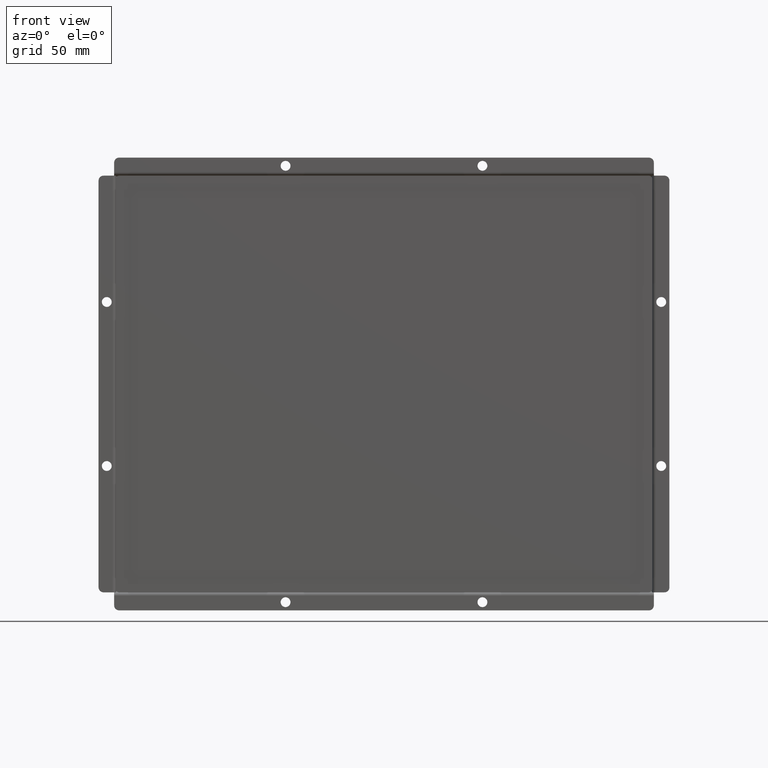
[diagram: clean part render]
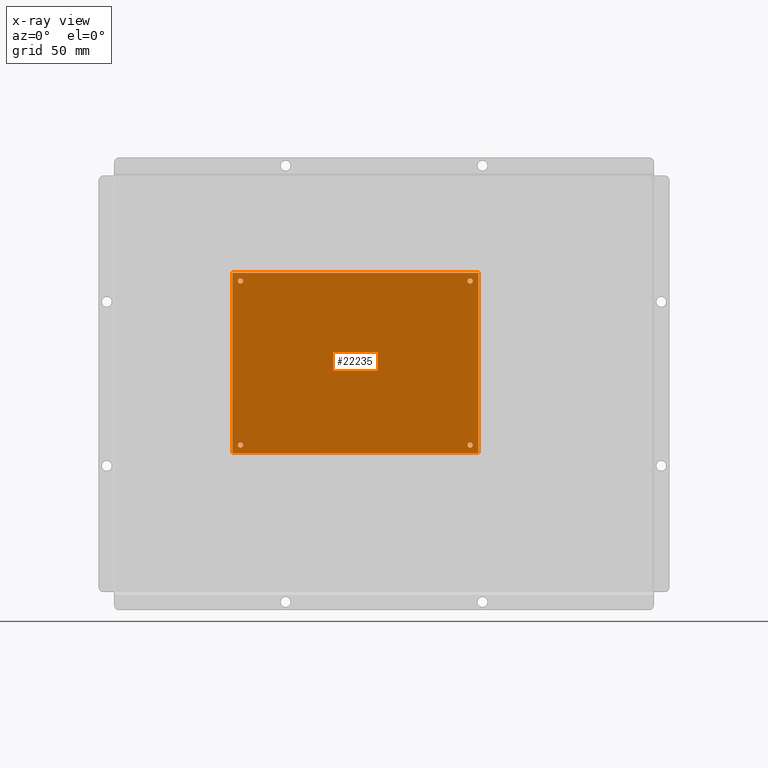
[diagram: x-ray — body ghosted, one internal face saturated and labeled with its STEP entity id]
A machine part, front view, then the same camera in x-ray: the body is ghosted and one INTERNAL B-rep face — a face not visible from any outside direction — is saturated and labeled: STEP entity #22235.
In plain terms, the highlighted planar face has unit normal (0, 1, 0).
Its self-contained STEP definition (entity closure, byte-faithful):
#1525=FACE_BOUND('',#4392,.T.);
#1526=FACE_BOUND('',#4393,.T.);
#1527=FACE_BOUND('',#4394,.T.);
#1528=FACE_BOUND('',#4395,.T.);
#2080=PLANE('',#24142);
#3045=FACE_OUTER_BOUND('',#4391,.T.);
#4391=EDGE_LOOP('',(#18592,#18593,#18594,#18595));
#4392=EDGE_LOOP('',(#18596));
#4393=EDGE_LOOP('',(#18597));
#4394=EDGE_LOOP('',(#18598));
#4395=EDGE_LOOP('',(#18599));
#6252=LINE('',#37070,#8104);
#6255=LINE('',#37075,#8107);
#6257=LINE('',#37079,#8109);
#6259=LINE('',#37082,#8111);
#8104=VECTOR('',#28376,10.);
#8107=VECTOR('',#28381,10.);
#8109=VECTOR('',#28385,10.);
#8111=VECTOR('',#28389,10.);
#9205=CIRCLE('',#24040,1.6);
#9206=CIRCLE('',#24042,1.6);
#9207=CIRCLE('',#24044,1.6);
#9210=CIRCLE('',#24048,1.6);
#10717=VERTEX_POINT('',#34824);
#10718=VERTEX_POINT('',#34828);
#10719=VERTEX_POINT('',#34832);
#10722=VERTEX_POINT('',#34840);
#10943=VERTEX_POINT('',#37068);
#10944=VERTEX_POINT('',#37069);
#10945=VERTEX_POINT('',#37074);
#10946=VERTEX_POINT('',#37078);
#13247=EDGE_CURVE('',#10717,#10717,#9205,.T.);
#13249=EDGE_CURVE('',#10718,#10718,#9206,.T.);
#13251=EDGE_CURVE('',#10719,#10719,#9207,.T.);
#13255=EDGE_CURVE('',#10722,#10722,#9210,.T.);
#13648=EDGE_CURVE('',#10943,#10944,#6252,.T.);
#13651=EDGE_CURVE('',#10944,#10945,#6255,.T.);
#13653=EDGE_CURVE('',#10945,#10946,#6257,.T.);
#13655=EDGE_CURVE('',#10946,#10943,#6259,.T.);
#18592=ORIENTED_EDGE('',*,*,#13655,.T.);
#18593=ORIENTED_EDGE('',*,*,#13648,.T.);
#18594=ORIENTED_EDGE('',*,*,#13651,.T.);
#18595=ORIENTED_EDGE('',*,*,#13653,.T.);
#18596=ORIENTED_EDGE('',*,*,#13247,.T.);
#18597=ORIENTED_EDGE('',*,*,#13249,.T.);
#18598=ORIENTED_EDGE('',*,*,#13251,.T.);
#18599=ORIENTED_EDGE('',*,*,#13255,.T.);
#22235=ADVANCED_FACE('',(#3045,#1525,#1526,#1527,#1528),#2080,.F.);
#24040=AXIS2_PLACEMENT_3D('',#34826,#27919,#27920);
#24042=AXIS2_PLACEMENT_3D('',#34830,#27924,#27925);
#24044=AXIS2_PLACEMENT_3D('',#34834,#27929,#27930);
#24048=AXIS2_PLACEMENT_3D('',#34842,#27938,#27939);
#24142=AXIS2_PLACEMENT_3D('',#37083,#28390,#28391);
#27919=DIRECTION('center_axis',(0.,0.,1.));
#27920=DIRECTION('ref_axis',(1.,0.,0.));
#27924=DIRECTION('center_axis',(0.,0.,1.));
#27925=DIRECTION('ref_axis',(1.,0.,0.));
#27929=DIRECTION('center_axis',(0.,0.,1.));
#27930=DIRECTION('ref_axis',(1.,0.,0.));
#27938=DIRECTION('center_axis',(0.,0.,1.));
#27939=DIRECTION('ref_axis',(1.,0.,0.));
#28376=DIRECTION('',(8.07434927000114E-17,1.,0.));
#28381=DIRECTION('',(1.,2.368475785867E-16,0.));
#28385=DIRECTION('',(0.,-1.,0.));
#28389=DIRECTION('',(-1.,-3.5527136788005E-16,0.));
#28390=DIRECTION('center_axis',(0.,0.,1.));
#28391=DIRECTION('ref_axis',(1.,0.,0.));
#34824=CARTESIAN_POINT('',(68.4,-50.,0.));
#34826=CARTESIAN_POINT('Origin',(70.,-50.,0.));
#34828=CARTESIAN_POINT('',(-71.6,50.,0.));
#34830=CARTESIAN_POINT('Origin',(-70.,50.,0.));
#34832=CARTESIAN_POINT('',(-71.6,-50.,0.));
#34834=CARTESIAN_POINT('Origin',(-70.,-50.,0.));
#34840=CARTESIAN_POINT('',(68.4,50.,0.));
#34842=CARTESIAN_POINT('Origin',(70.,50.,0.));
#37068=CARTESIAN_POINT('',(-75.,-55.,0.));
#37069=CARTESIAN_POINT('',(-75.,55.,0.));
#37070=CARTESIAN_POINT('',(-75.,-55.,0.));
#37074=CARTESIAN_POINT('',(75.,55.,0.));
#37075=CARTESIAN_POINT('',(-75.,55.,0.));
#37078=CARTESIAN_POINT('',(75.,-55.,0.));
#37079=CARTESIAN_POINT('',(75.,55.,0.));
#37082=CARTESIAN_POINT('',(75.,-55.,0.));
#37083=CARTESIAN_POINT('Origin',(-1.63971400560023E-14,-1.4518301091252E-14,
0.));